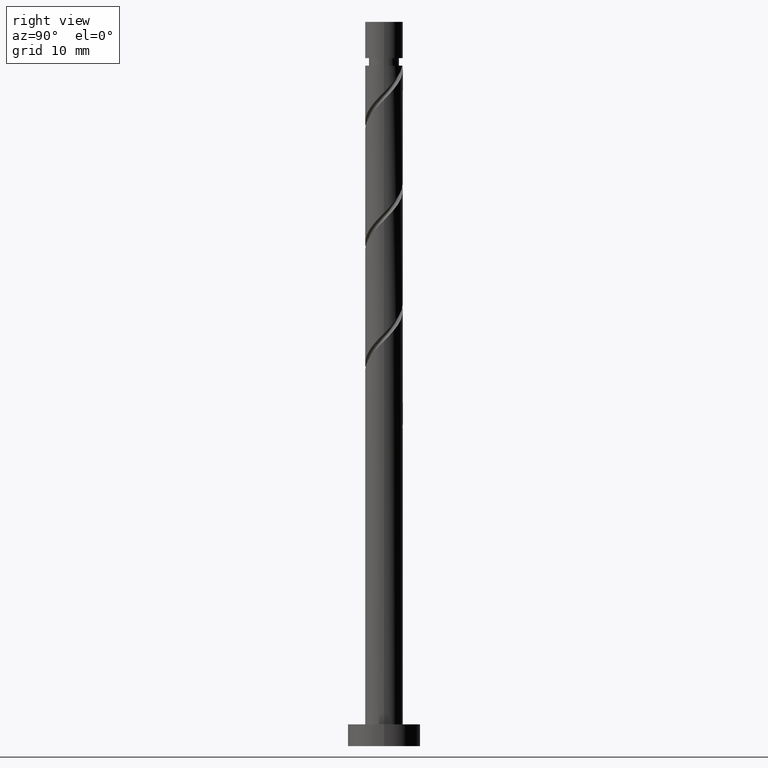
[diagram: clean part render]
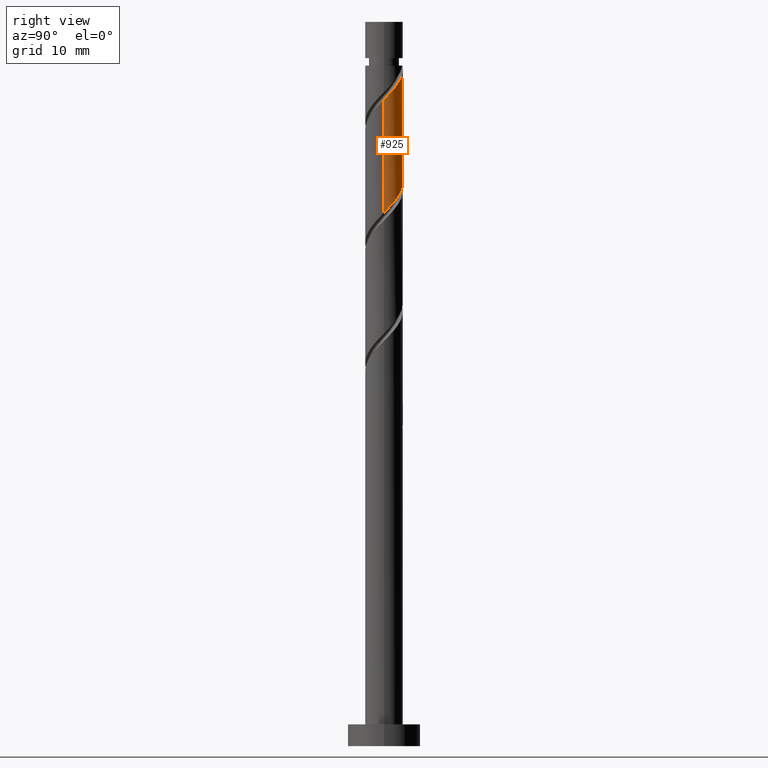
[diagram: same view with one face highlighted and labeled with its STEP entity id]
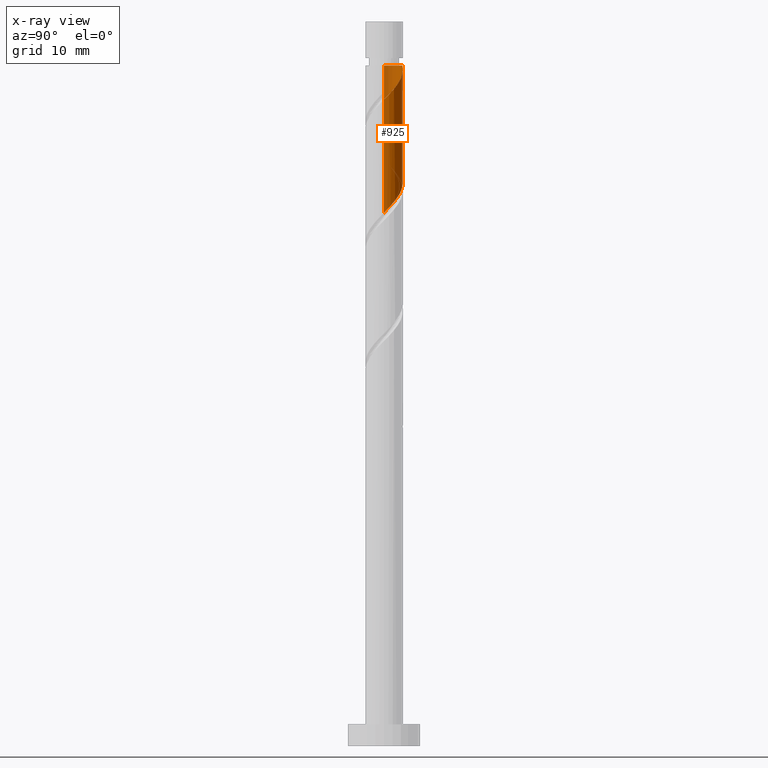
[diagram: x-ray of the same camera — body ghosted, the highlighted face saturated]
A machine part, right view. The second image highlights one B-rep face of the part: STEP entity #925.
The next image is the same camera in x-ray: the body ghosted, the highlighted face saturated — about 0% of this face is hidden behind the body in this view.
In plain terms, the highlighted cylindrical surface (edge-blend (fillet) strip) has radius 2.6 mm, axis along (-0, -0, -1).
Its self-contained STEP definition (entity closure, byte-faithful):
#32 = CARTESIAN_POINT ( 'NONE',  ( 1.947935995195031911, 1.722075886429968783, 91.18174009235760025 ) ) ;
#46 = CARTESIAN_POINT ( 'NONE',  ( 2.599134587407737840, 0.06707754125508115506, 89.32988824050575261 ) ) ;
#61 = CARTESIAN_POINT ( 'NONE',  ( -1.644287553589979023, 2.065549559076044872, 79.60766601828352407 ) ) ;
#66 = CARTESIAN_POINT ( 'NONE',  ( 2.600000000000000533, 2.502276896604711082E-16, 73.65703942512411118 ) ) ;
#77 = VECTOR ( 'NONE', #1409, 1000.000000000000000 ) ;
#134 = AXIS2_PLACEMENT_3D ( 'NONE', #289, #1425, #294 ) ;
#145 = CARTESIAN_POINT ( 'NONE',  ( 2.600000000000003197, 0.03354435326326067612, 89.29601368907896131 ) ) ;
#157 = LINE ( 'NONE', #711, #77 ) ;
#165 = EDGE_CURVE ( 'NONE', #1044, #1333, #1316, .T. ) ;
#225 = CARTESIAN_POINT ( 'NONE',  ( 0.5173934672954431102, 2.548000000000000931, 77.29285120346872873 ) ) ;
#241 = VERTEX_POINT ( 'NONE', #852 ) ;
#250 = ORIENTED_EDGE ( 'NONE', *, *, #1381, .F. ) ;
#278 = CYLINDRICAL_SURFACE ( 'NONE', #134, 2.600000000000000089 ) ;
#283 = CARTESIAN_POINT ( 'NONE',  ( 0.000000000000000000, 0.000000000000000000, 93.95951787013538592 ) ) ;
#289 = CARTESIAN_POINT ( 'NONE',  ( 0.000000000000000000, 0.000000000000000000, 100.0000000000000000 ) ) ;
#294 = DIRECTION ( 'NONE',  ( -1.000000000000000000, 0.000000000000000000, 0.000000000000000000 ) ) ;
#297 = CARTESIAN_POINT ( 'NONE',  ( 2.600000000000000533, 0.4239413667331821123, 74.08695893748972594 ) ) ;
#307 = EDGE_CURVE ( 'NONE', #241, #1345, #974, .T. ) ;
#310 = CARTESIAN_POINT ( 'NONE',  ( 2.465329462490471357, 0.8259241135700340353, 74.51507342569097148 ) ) ;
#322 = CARTESIAN_POINT ( 'NONE',  ( -2.600000000000000089, 0.000000000000000000, 100.0000000000000000 ) ) ;
#333 = CARTESIAN_POINT ( 'NONE',  ( -0.3852765019334414842, 2.571295785602647044, 78.21877712939463834 ) ) ;
#370 = CARTESIAN_POINT ( 'NONE',  ( 2.419445721942482752, 0.9519886546457586585, 90.25581416643167643 ) ) ;
#408 = CARTESIAN_POINT ( 'NONE',  ( -2.600000000000000533, 0.03354435326325226618, 81.95635538452511071 ) ) ;
#460 = CARTESIAN_POINT ( 'NONE',  ( 1.357658148454168101, 2.217377809922341125, 76.36692527754280491 ) ) ;
#465 = CARTESIAN_POINT ( 'NONE',  ( 2.600000000000000533, 2.502276896604711082E-16, 73.65703942512412539 ) ) ;
#489 = CARTESIAN_POINT ( 'NONE',  ( 2.251584436800082134, 1.378602213783888475, 90.71877712939463834 ) ) ;
#501 = CARTESIAN_POINT ( 'NONE',  ( 2.587307007084882926, 0.5253750955076290641, 89.79285120346871452 ) ) ;
#526 = CARTESIAN_POINT ( 'NONE',  ( -2.251584436800076805, 1.378602213783888697, 80.53359194420944789 ) ) ;
#531 = CARTESIAN_POINT ( 'NONE',  ( -2.419445721942478755, 0.9519886546457586585, 80.99655490717243822 ) ) ;
#570 = CARTESIAN_POINT ( 'NONE',  ( -2.587307007084879373, 0.5253750955076291751, 81.45951787013538592 ) ) ;
#590 = AXIS2_PLACEMENT_3D ( 'NONE', #283, #735, #740 ) ;
#617 = CARTESIAN_POINT ( 'NONE',  ( -2.600000000000000977, 0.000000000000000000, 93.95951787013538592 ) ) ;
#622 = FACE_OUTER_BOUND ( 'NONE', #1461, .T. ) ;
#644 = CARTESIAN_POINT ( 'NONE',  ( -2.599134587407734731, 0.06707754125508150200, 81.92248083309836204 ) ) ;
#647 = ORIENTED_EDGE ( 'NONE', *, *, #903, .T. ) ;
#711 = CARTESIAN_POINT ( 'NONE',  ( 2.600000000000000089, 3.184081677783117698E-16, 100.0000000000000000 ) ) ;
#735 = DIRECTION ( 'NONE',  ( -0.000000000000000000, -0.000000000000000000, -1.000000000000000000 ) ) ;
#740 = DIRECTION ( 'NONE',  ( -1.000000000000000000, 0.000000000000000000, 0.000000000000000000 ) ) ;
#791 = CARTESIAN_POINT ( 'NONE',  ( -1.241476438953567740, 2.284455351177424376, 79.14470305532057637 ) ) ;
#841 = CARTESIAN_POINT ( 'NONE',  ( -0.5173934672954206837, 2.548000000000005372, 93.95951787013531487 ) ) ;
#852 = CARTESIAN_POINT ( 'NONE',  ( -2.600000000000000977, -1.568591487423849524E-15, 81.99037275845748240 ) ) ;
#861 = CARTESIAN_POINT ( 'NONE',  ( 2.034169220009037549, 1.619307130956887164, 75.44099935161688109 ) ) ;
#865 = VERTEX_POINT ( 'NONE', #617 ) ;
#895 = LINE ( 'NONE', #322, #1063 ) ;
#903 = EDGE_CURVE ( 'NONE', #865, #1333, #1254, .T. ) ;
#918 = CARTESIAN_POINT ( 'NONE',  ( 0.06811232045027358628, 2.639230427926489764, 77.75581416643166222 ) ) ;
#925 = ADVANCED_FACE ( 'NONE', ( #622 ), #278, .T. ) ;
#949 = CARTESIAN_POINT ( 'NONE',  ( 1.644287553589981909, 2.065549559076047981, 91.64470305532059058 ) ) ;
#957 = CARTESIAN_POINT ( 'NONE',  ( 1.241476438953571071, 2.284455351177427040, 92.10766601828356670 ) ) ;
#974 =( BOUNDED_CURVE ( )  B_SPLINE_CURVE ( 2, ( #1305, #408, #644, #570, #531, #526, #1086, #61, #791, #1095, #333, #918, #225, #1079, #460, #1438, #861, #982, #310, #297, #66 ),
 .UNSPECIFIED., .F., .T. ) 
 B_SPLINE_CURVE_WITH_KNOTS ( ( 3, 2, 2, 2, 2, 2, 2, 2, 2, 2, 3 ),
 ( 0.4295248053855290071, 0.4305555555555555802, 0.4444444444444444198, 0.4583333333333333148, 0.4722222222222222099, 0.4861111111111111049, 0.5000000000000000000, 0.5138888888888888395, 0.5277777777777777901, 0.5416666666666666297, 0.5545248053855291737 ),
 .UNSPECIFIED. ) 
 CURVE ( )  GEOMETRIC_REPRESENTATION_ITEM ( )  RATIONAL_B_SPLINE_CURVE ( ( 0.9071930855141200345, 0.9080659294509676460, 0.9090909090909077284, 0.8952797754656424134, 0.9090909090909077284, 0.8952797754656424134, 0.9090909090909077284, 0.8952797754656424134, 0.9090909090909077284, 0.8952797754656424134, 0.9090909090909077284, 0.8952797754656424134, 0.9090909090909077284, 0.8952797754656424134, 0.9090909090909077284, 0.8952797754656424134, 0.9090909090909077284, 0.8952797754656424134, 0.9090909090909077284, 0.8963047551055824957, 0.9071930855141202565 ) ) 
 REPRESENTATION_ITEM ( '' )  );
#982 = CARTESIAN_POINT ( 'NONE',  ( 2.319696757250351737, 1.260628214142601289, 74.97803638865389075 ) ) ;
#1013 = CARTESIAN_POINT ( 'NONE',  ( 2.600000000000003642, 1.344506989220432448E-15, 89.26199631514663224 ) ) ;
#1044 = VERTEX_POINT ( 'NONE', #1013 ) ;
#1058 = CARTESIAN_POINT ( 'NONE',  ( 0.3852765019334445928, 2.571295785602650152, 93.03359194420949052 ) ) ;
#1063 = VECTOR ( 'NONE', #1123, 1000.000000000000000 ) ;
#1064 = CARTESIAN_POINT ( 'NONE',  ( 2.600000000000003642, 1.344506989220432448E-15, 89.26199631514663224 ) ) ;
#1077 = CARTESIAN_POINT ( 'NONE',  ( 0.8386653243171597882, 2.503361143278807432, 92.57062898124652861 ) ) ;
#1079 = CARTESIAN_POINT ( 'NONE',  ( 0.9666746141406113990, 2.456769572073511654, 76.82988824050572418 ) ) ;
#1086 = CARTESIAN_POINT ( 'NONE',  ( -1.947935995195028358, 1.722075886429966785, 80.07062898124650019 ) ) ;
#1095 = CARTESIAN_POINT ( 'NONE',  ( -0.8386653243171563465, 2.503361143278803880, 78.68174009235760025 ) ) ;
#1098 = ORIENTED_EDGE ( 'NONE', *, *, #307, .F. ) ;
#1123 = DIRECTION ( 'NONE',  ( -0.000000000000000000, -0.000000000000000000, -1.000000000000000000 ) ) ;
#1254 = CIRCLE ( 'NONE', #590, 2.600000000000000533 ) ;
#1262 = CARTESIAN_POINT ( 'NONE',  ( -0.5173934672954206837, 2.548000000000005372, 93.95951787013531487 ) ) ;
#1273 = EDGE_CURVE ( 'NONE', #1044, #1345, #157, .T. ) ;
#1305 = CARTESIAN_POINT ( 'NONE',  ( -2.600000000000000977, -1.568591487423849327E-15, 81.99037275845748240 ) ) ;
#1307 = ORIENTED_EDGE ( 'NONE', *, *, #165, .F. ) ;
#1316 =( BOUNDED_CURVE ( )  B_SPLINE_CURVE ( 2, ( #1064, #145, #46, #501, #370, #489, #32, #949, #957, #1077, #1058, #1397, #841 ),
 .UNSPECIFIED., .F., .T. ) 
 B_SPLINE_CURVE_WITH_KNOTS ( ( 3, 2, 2, 2, 2, 2, 3 ),
 ( 0.6795248053855292847, 0.6805555555555555802, 0.6944444444444444198, 0.7083333333333331483, 0.7222222222222220989, 0.7361111111111109384, 0.7499999999999997780 ),
 .UNSPECIFIED. ) 
 CURVE ( )  GEOMETRIC_REPRESENTATION_ITEM ( )  RATIONAL_B_SPLINE_CURVE ( ( 0.9071930855141268069, 0.9080659294509743074, 0.9090909090909141677, 0.8952797754656487417, 0.9090909090909141677, 0.8952797754656487417, 0.9090909090909141677, 0.8952797754656487417, 0.9090909090909141677, 0.8952797754656487417, 0.9090909090909141677, 0.8952797754656489637, 0.9090909090909139456 ) ) 
 REPRESENTATION_ITEM ( '' )  );
#1333 = VERTEX_POINT ( 'NONE', #1262 ) ;
#1345 = VERTEX_POINT ( 'NONE', #465 ) ;
#1375 = ORIENTED_EDGE ( 'NONE', *, *, #1273, .T. ) ;
#1381 = EDGE_CURVE ( 'NONE', #865, #241, #895, .T. ) ;
#1397 = CARTESIAN_POINT ( 'NONE',  ( -0.06811232045026581472, 2.639230427926491540, 93.49655490717240980 ) ) ;
#1409 = DIRECTION ( 'NONE',  ( -0.000000000000000000, -0.000000000000000000, -1.000000000000000000 ) ) ;
#1425 = DIRECTION ( 'NONE',  ( -0.000000000000000000, -0.000000000000000000, -1.000000000000000000 ) ) ;
#1438 = CARTESIAN_POINT ( 'NONE',  ( 1.748641682767722250, 1.977986047771173483, 75.90396231457980036 ) ) ;
#1461 = EDGE_LOOP ( 'NONE', ( #1307, #1375, #1098, #250, #647 ) ) ;